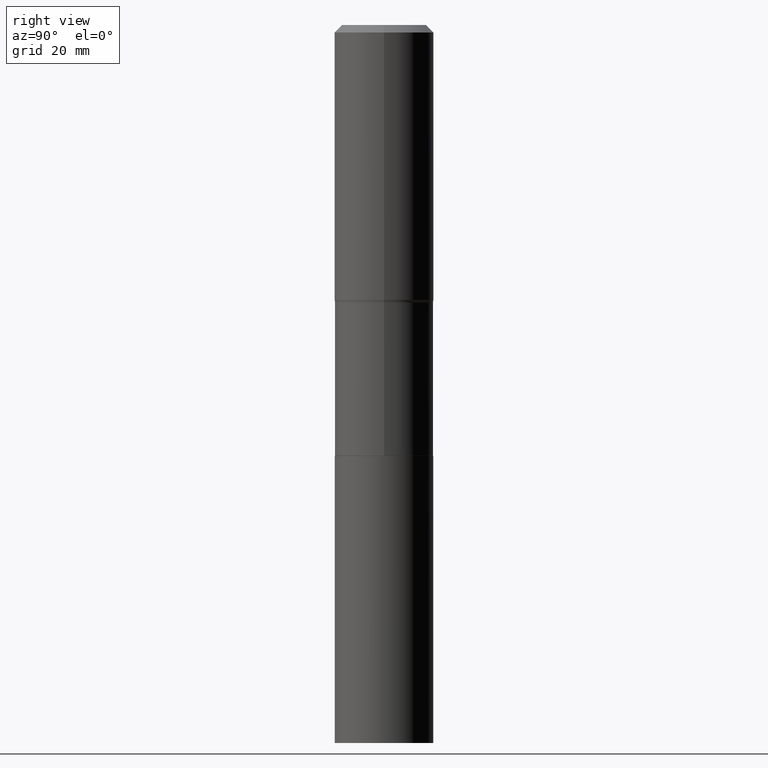
[diagram: clean part render]
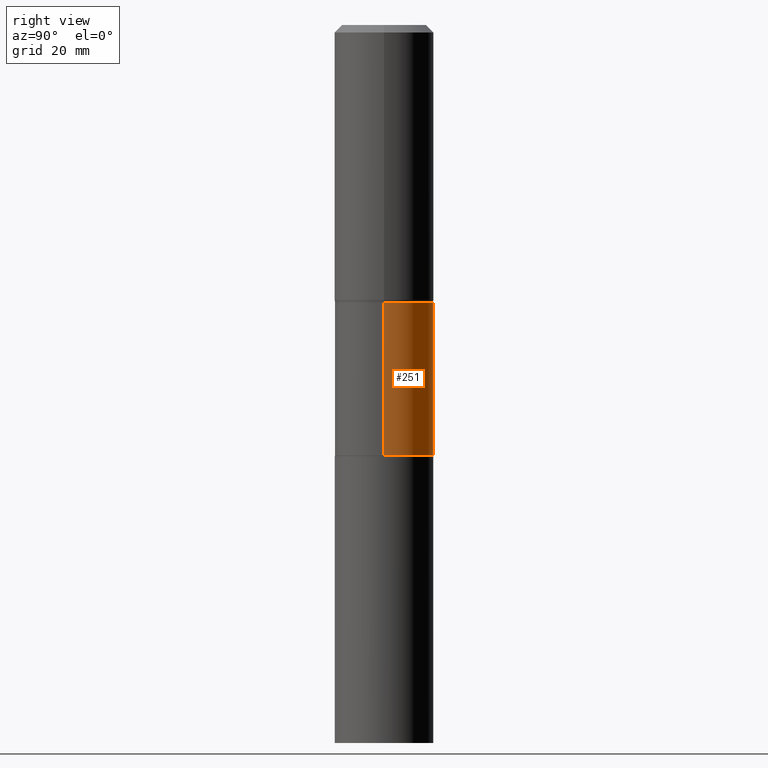
[diagram: same view with one face highlighted and labeled with its STEP entity id]
A machine part, right view. The second image highlights one B-rep face of the part: STEP entity #251.
In plain terms, the highlighted cylindrical surface (partial cylindrical patch) has radius 8.9294 mm, axis along (-0, 0, 1).
Its self-contained STEP definition (entity closure, byte-faithful):
#47 = DIRECTION ( 'NONE',  ( -2.445468806185136597E-29, 3.491481338843145583E-15, 1.000000000000000000 ) ) ;
#50 = VECTOR ( 'NONE', #233, 39.37007874015748143 ) ;
#54 = DIRECTION ( 'NONE',  ( -2.445468806185136877E-29, 3.491481338843145188E-15, 1.000000000000000000 ) ) ;
#58 = CARTESIAN_POINT ( 'NONE',  ( -0.3515499999999999181, 2.497912987564631622E-15, -1.729251630979111735E-29 ) ) ;
#61 = VERTEX_POINT ( 'NONE', #435 ) ;
#65 = AXIS2_PLACEMENT_3D ( 'NONE', #299, #447, #237 ) ;
#66 = DIRECTION ( 'NONE',  ( -2.445468806185136597E-29, 3.491481338843145583E-15, 1.000000000000000000 ) ) ;
#73 = CARTESIAN_POINT ( 'NONE',  ( 7.509056516272079952E-29, -1.072094259905176212E-14, -3.070599999999999774 ) ) ;
#80 = EDGE_CURVE ( 'NONE', #96, #61, #95, .T. ) ;
#82 = AXIS2_PLACEMENT_3D ( 'NONE', #73, #47, #291 ) ;
#94 = CYLINDRICAL_SURFACE ( 'NONE', #340, 0.3515499999999999181 ) ;
#95 = CIRCLE ( 'NONE', #65, 0.3515499999999998071 ) ;
#96 = VERTEX_POINT ( 'NONE', #413 ) ;
#102 = VERTEX_POINT ( 'NONE', #261 ) ;
#113 = VECTOR ( 'NONE', #54, 39.37007874015748143 ) ;
#129 = FACE_OUTER_BOUND ( 'NONE', #434, .T. ) ;
#136 = EDGE_CURVE ( 'NONE', #429, #96, #309, .T. ) ;
#144 = EDGE_CURVE ( 'NONE', #102, #61, #411, .T. ) ;
#153 = ORIENTED_EDGE ( 'NONE', *, *, #208, .T. ) ;
#189 = ORIENTED_EDGE ( 'NONE', *, *, #144, .T. ) ;
#208 = EDGE_CURVE ( 'NONE', #429, #102, #431, .T. ) ;
#211 = CARTESIAN_POINT ( 'NONE',  ( 0.000000000000000000, 0.000000000000000000, 0.000000000000000000 ) ) ;
#212 = DIRECTION ( 'NONE',  ( 1.000000000000000000, -6.982962677686265922E-15, 4.876176775795935793E-29 ) ) ;
#233 = DIRECTION ( 'NONE',  ( -2.445468806185136877E-29, 3.491481338843145188E-15, 1.000000000000000000 ) ) ;
#237 = DIRECTION ( 'NONE',  ( 1.000000000000000000, -6.982962677686265133E-15, 0.000000000000000000 ) ) ;
#250 = ORIENTED_EDGE ( 'NONE', *, *, #136, .F. ) ;
#251 = ADVANCED_FACE ( 'NONE', ( #129 ), #94, .T. ) ;
#261 = CARTESIAN_POINT ( 'NONE',  ( -0.3515499999999999736, -6.321918022487037385E-15, -3.070599999999999774 ) ) ;
#282 = ORIENTED_EDGE ( 'NONE', *, *, #80, .F. ) ;
#291 = DIRECTION ( 'NONE',  ( 1.000000000000000000, -6.982962677686265922E-15, 0.000000000000000000 ) ) ;
#299 = CARTESIAN_POINT ( 'NONE',  ( 4.845940986336468413E-29, -6.918719421051579045E-15, -1.981600000000000472 ) ) ;
#309 = LINE ( 'NONE', #372, #50 ) ;
#340 = AXIS2_PLACEMENT_3D ( 'NONE', #211, #66, #212 ) ;
#351 = CARTESIAN_POINT ( 'NONE',  ( 0.3515499999999999736, -1.317580312839236801E-14, -3.070599999999999774 ) ) ;
#372 = CARTESIAN_POINT ( 'NONE',  ( 0.3515499999999999181, -2.454860529340606276E-15, 1.714219945531060835E-29 ) ) ;
#411 = LINE ( 'NONE', #58, #113 ) ;
#413 = CARTESIAN_POINT ( 'NONE',  ( 0.3515499999999998071, -9.373579950392184927E-15, -1.981600000000000472 ) ) ;
#429 = VERTEX_POINT ( 'NONE', #351 ) ;
#431 = CIRCLE ( 'NONE', #82, 0.3515499999999999736 ) ;
#434 = EDGE_LOOP ( 'NONE', ( #153, #189, #282, #250 ) ) ;
#435 = CARTESIAN_POINT ( 'NONE',  ( -0.3515499999999998071, -6.321918022487038963E-15, -1.981600000000000472 ) ) ;
#447 = DIRECTION ( 'NONE',  ( -2.445468806185136597E-29, 3.491481338843145583E-15, 1.000000000000000000 ) ) ;